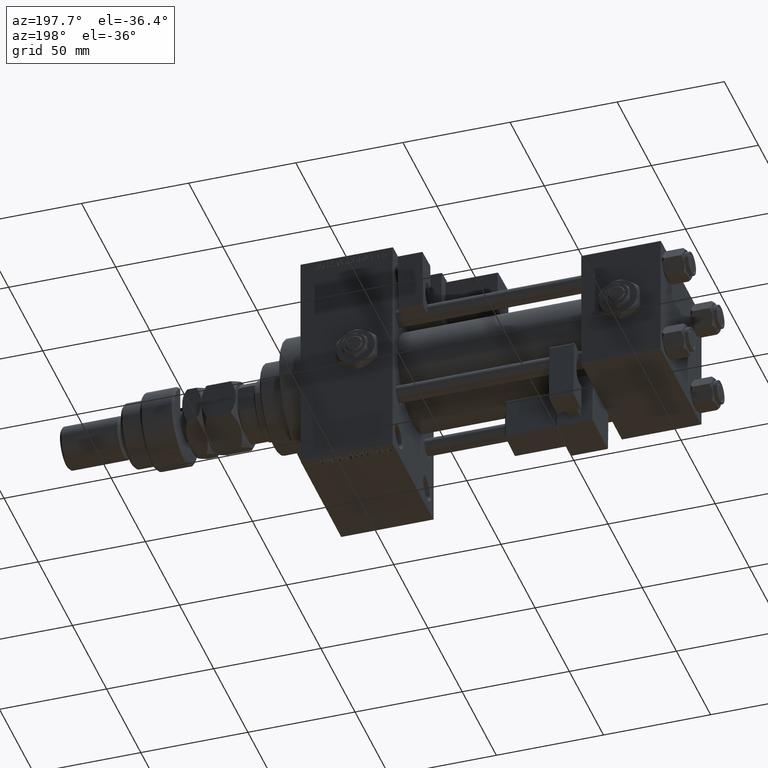
[diagram: clean part render]
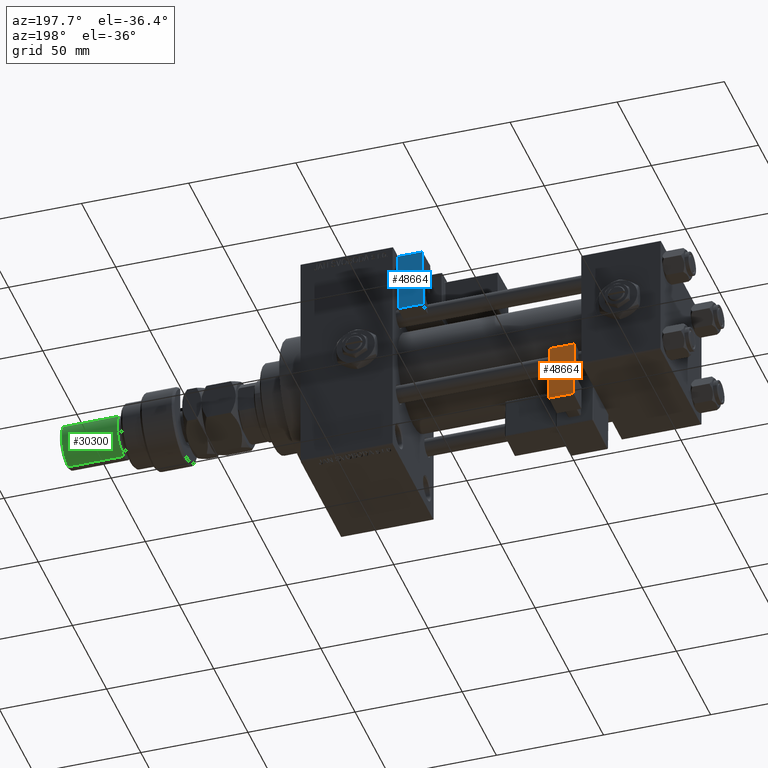
[diagram: same view with three faces highlighted in distinct colors, each labeled with its STEP entity id]
A machine part, auxiliary view with three faces highlighted in distinct colors.
Their STEP definitions:

[orange] entity #48664 — the highlighted planar face has unit normal (0, -0.9994, -0.0353).
#1641 = CARTESIAN_POINT ( 'NONE',  ( -5.750000000000000000, 5.750000000000000000, 0.000000000000000000 ) ) ;
#2496 = DIRECTION ( 'NONE',  ( -0.000000000000000000, -0.000000000000000000, -1.000000000000000000 ) ) ;
#2505 = PLANE ( 'NONE',  #38271 ) ;
#3134 = VECTOR ( 'NONE', #25343, 1000.000000000000000 ) ;
#4100 = CARTESIAN_POINT ( 'NONE',  ( -5.750000000000000000, 5.750000000000000000, 28.00000000000000000 ) ) ;
#8907 = CARTESIAN_POINT ( 'NONE',  ( 5.750000000000000000, 5.750000000000001776, 28.00000000000000000 ) ) ;
#11486 = LINE ( 'NONE', #24720, #28955 ) ;
#13844 = VERTEX_POINT ( 'NONE', #31279 ) ;
#15899 = DIRECTION ( 'NONE',  ( -1.000000000000000000, -1.508455196501571429E-16, -0.000000000000000000 ) ) ;
#18065 = EDGE_CURVE ( 'NONE', #13844, #30542, #54248, .T. ) ;
#18978 = ORIENTED_EDGE ( 'NONE', *, *, #21089, .T. ) ;
#19876 = CARTESIAN_POINT ( 'NONE',  ( 5.750000000000000000, 5.750000000000001776, 12.00000000000000000 ) ) ;
#21089 = EDGE_CURVE ( 'NONE', #39230, #30542, #11486, .T. ) ;
#21645 = VERTEX_POINT ( 'NONE', #8907 ) ;
#24720 = CARTESIAN_POINT ( 'NONE',  ( -5.750000000000000000, 5.750000000000000000, 0.000000000000000000 ) ) ;
#25343 = DIRECTION ( 'NONE',  ( 1.000000000000000000, 1.508455196501571183E-16, -0.000000000000000000 ) ) ;
#25462 = DIRECTION ( 'NONE',  ( -0.000000000000000000, -0.000000000000000000, -1.000000000000000000 ) ) ;
#26148 = VECTOR ( 'NONE', #25462, 1000.000000000000000 ) ;
#26320 = CARTESIAN_POINT ( 'NONE',  ( 5.750000000000000000, 5.750000000000001776, 0.000000000000000000 ) ) ;
#27903 = FACE_OUTER_BOUND ( 'NONE', #45703, .T. ) ;
#28696 = LINE ( 'NONE', #19876, #49431 ) ;
#28955 = VECTOR ( 'NONE', #15899, 1000.000000000000000 ) ;
#29597 = CARTESIAN_POINT ( 'NONE',  ( -5.750000000000000000, 5.750000000000000000, 12.00000000000000000 ) ) ;
#30542 = VERTEX_POINT ( 'NONE', #1641 ) ;
#31279 = CARTESIAN_POINT ( 'NONE',  ( -5.750000000000000000, 5.750000000000000000, 28.00000000000000000 ) ) ;
#32306 = DIRECTION ( 'NONE',  ( 1.000000000000000000, 1.508455196501571183E-16, 0.000000000000000000 ) ) ;
#33458 = ORIENTED_EDGE ( 'NONE', *, *, #51651, .T. ) ;
#37544 = EDGE_CURVE ( 'NONE', #21645, #39230, #28696, .T. ) ;
#38271 = AXIS2_PLACEMENT_3D ( 'NONE', #45018, #49177, #32306 ) ;
#39230 = VERTEX_POINT ( 'NONE', #26320 ) ;
#40856 = ORIENTED_EDGE ( 'NONE', *, *, #37544, .T. ) ;
#45018 = CARTESIAN_POINT ( 'NONE',  ( -5.750000000000000000, 5.750000000000000000, 12.00000000000000000 ) ) ;
#45703 = EDGE_LOOP ( 'NONE', ( #54076, #33458, #40856, #18978 ) ) ;
#46598 = LINE ( 'NONE', #4100, #3134 ) ;
#48664 = ADVANCED_FACE ( 'NONE', ( #27903 ), #2505, .F. ) ;
#49177 = DIRECTION ( 'NONE',  ( 1.508455196501571183E-16, -1.000000000000000000, 0.000000000000000000 ) ) ;
#49431 = VECTOR ( 'NONE', #2496, 1000.000000000000000 ) ;
#51651 = EDGE_CURVE ( 'NONE', #13844, #21645, #46598, .T. ) ;
#54076 = ORIENTED_EDGE ( 'NONE', *, *, #18065, .F. ) ;
#54248 = LINE ( 'NONE', #29597, #26148 ) ;

[blue] entity #48664 — the highlighted planar face has unit normal (-0, -0.9994, 0.0353).
#1641 = CARTESIAN_POINT ( 'NONE',  ( -5.750000000000000000, 5.750000000000000000, 0.000000000000000000 ) ) ;
#2496 = DIRECTION ( 'NONE',  ( -0.000000000000000000, -0.000000000000000000, -1.000000000000000000 ) ) ;
#2505 = PLANE ( 'NONE',  #38271 ) ;
#3134 = VECTOR ( 'NONE', #25343, 1000.000000000000000 ) ;
#4100 = CARTESIAN_POINT ( 'NONE',  ( -5.750000000000000000, 5.750000000000000000, 28.00000000000000000 ) ) ;
#8907 = CARTESIAN_POINT ( 'NONE',  ( 5.750000000000000000, 5.750000000000001776, 28.00000000000000000 ) ) ;
#11486 = LINE ( 'NONE', #24720, #28955 ) ;
#13844 = VERTEX_POINT ( 'NONE', #31279 ) ;
#15899 = DIRECTION ( 'NONE',  ( -1.000000000000000000, -1.508455196501571429E-16, -0.000000000000000000 ) ) ;
#18065 = EDGE_CURVE ( 'NONE', #13844, #30542, #54248, .T. ) ;
#18978 = ORIENTED_EDGE ( 'NONE', *, *, #21089, .T. ) ;
#19876 = CARTESIAN_POINT ( 'NONE',  ( 5.750000000000000000, 5.750000000000001776, 12.00000000000000000 ) ) ;
#21089 = EDGE_CURVE ( 'NONE', #39230, #30542, #11486, .T. ) ;
#21645 = VERTEX_POINT ( 'NONE', #8907 ) ;
#24720 = CARTESIAN_POINT ( 'NONE',  ( -5.750000000000000000, 5.750000000000000000, 0.000000000000000000 ) ) ;
#25343 = DIRECTION ( 'NONE',  ( 1.000000000000000000, 1.508455196501571183E-16, -0.000000000000000000 ) ) ;
#25462 = DIRECTION ( 'NONE',  ( -0.000000000000000000, -0.000000000000000000, -1.000000000000000000 ) ) ;
#26148 = VECTOR ( 'NONE', #25462, 1000.000000000000000 ) ;
#26320 = CARTESIAN_POINT ( 'NONE',  ( 5.750000000000000000, 5.750000000000001776, 0.000000000000000000 ) ) ;
#27903 = FACE_OUTER_BOUND ( 'NONE', #45703, .T. ) ;
#28696 = LINE ( 'NONE', #19876, #49431 ) ;
#28955 = VECTOR ( 'NONE', #15899, 1000.000000000000000 ) ;
#29597 = CARTESIAN_POINT ( 'NONE',  ( -5.750000000000000000, 5.750000000000000000, 12.00000000000000000 ) ) ;
#30542 = VERTEX_POINT ( 'NONE', #1641 ) ;
#31279 = CARTESIAN_POINT ( 'NONE',  ( -5.750000000000000000, 5.750000000000000000, 28.00000000000000000 ) ) ;
#32306 = DIRECTION ( 'NONE',  ( 1.000000000000000000, 1.508455196501571183E-16, 0.000000000000000000 ) ) ;
#33458 = ORIENTED_EDGE ( 'NONE', *, *, #51651, .T. ) ;
#37544 = EDGE_CURVE ( 'NONE', #21645, #39230, #28696, .T. ) ;
#38271 = AXIS2_PLACEMENT_3D ( 'NONE', #45018, #49177, #32306 ) ;
#39230 = VERTEX_POINT ( 'NONE', #26320 ) ;
#40856 = ORIENTED_EDGE ( 'NONE', *, *, #37544, .T. ) ;
#45018 = CARTESIAN_POINT ( 'NONE',  ( -5.750000000000000000, 5.750000000000000000, 12.00000000000000000 ) ) ;
#45703 = EDGE_LOOP ( 'NONE', ( #54076, #33458, #40856, #18978 ) ) ;
#46598 = LINE ( 'NONE', #4100, #3134 ) ;
#48664 = ADVANCED_FACE ( 'NONE', ( #27903 ), #2505, .F. ) ;
#49177 = DIRECTION ( 'NONE',  ( 1.508455196501571183E-16, -1.000000000000000000, 0.000000000000000000 ) ) ;
#49431 = VECTOR ( 'NONE', #2496, 1000.000000000000000 ) ;
#51651 = EDGE_CURVE ( 'NONE', #13844, #21645, #46598, .T. ) ;
#54076 = ORIENTED_EDGE ( 'NONE', *, *, #18065, .F. ) ;
#54248 = LINE ( 'NONE', #29597, #26148 ) ;

[green] entity #30300 — the highlighted cylindrical surface (edge-blend (fillet) strip) has radius 10 mm, axis along (-1, -0, 0).
#2754 = CARTESIAN_POINT ( 'NONE',  ( 0.000000000000000000, 0.000000000000000000, 29.00000000000000711 ) ) ;
#4431 = VECTOR ( 'NONE', #18362, 1000.000000000000000 ) ;
#6123 = EDGE_CURVE ( 'NONE', #23846, #40198, #6221, .T. ) ;
#6221 = CIRCLE ( 'NONE', #51944, 10.00000000000000000 ) ;
#8537 = EDGE_CURVE ( 'NONE', #46385, #23846, #26908, .T. ) ;
#12332 = VERTEX_POINT ( 'NONE', #44120 ) ;
#12782 = CARTESIAN_POINT ( 'NONE',  ( -10.00000000000000000, 0.000000000000000000, 56.00000000000000711 ) ) ;
#13222 = ORIENTED_EDGE ( 'NONE', *, *, #52358, .F. ) ;
#14223 = CARTESIAN_POINT ( 'NONE',  ( 10.00000000000000000, 1.224646799147353256E-15, 56.00000000000000711 ) ) ;
#18362 = DIRECTION ( 'NONE',  ( -0.000000000000000000, -0.000000000000000000, -1.000000000000000000 ) ) ;
#21805 = FACE_OUTER_BOUND ( 'NONE', #44333, .T. ) ;
#23119 = AXIS2_PLACEMENT_3D ( 'NONE', #24401, #41256, #37116 ) ;
#23846 = VERTEX_POINT ( 'NONE', #51318 ) ;
#24328 = VECTOR ( 'NONE', #29359, 1000.000000000000000 ) ;
#24401 = CARTESIAN_POINT ( 'NONE',  ( 0.000000000000000000, 0.000000000000000000, 54.99999999999998579 ) ) ;
#26908 = LINE ( 'NONE', #14223, #4431 ) ;
#29359 = DIRECTION ( 'NONE',  ( -0.000000000000000000, -0.000000000000000000, -1.000000000000000000 ) ) ;
#30300 = ADVANCED_FACE ( 'NONE', ( #21805 ), #30896, .T. ) ;
#30331 = CARTESIAN_POINT ( 'NONE',  ( 10.00000000000000000, 1.224646799147353256E-15, 54.99999999999998579 ) ) ;
#30896 = CYLINDRICAL_SURFACE ( 'NONE', #45944, 10.00000000000000000 ) ;
#35051 = DIRECTION ( 'NONE',  ( -1.000000000000000000, 0.000000000000000000, 0.000000000000000000 ) ) ;
#36758 = CARTESIAN_POINT ( 'NONE',  ( -10.00000000000000000, 0.000000000000000000, 29.00000000000000711 ) ) ;
#37116 = DIRECTION ( 'NONE',  ( 1.000000000000000000, 0.000000000000000000, 0.000000000000000000 ) ) ;
#37408 = ORIENTED_EDGE ( 'NONE', *, *, #41675, .T. ) ;
#38116 = CARTESIAN_POINT ( 'NONE',  ( 0.000000000000000000, 0.000000000000000000, 56.00000000000000711 ) ) ;
#39002 = DIRECTION ( 'NONE',  ( -0.000000000000000000, -0.000000000000000000, 1.000000000000000000 ) ) ;
#40198 = VERTEX_POINT ( 'NONE', #36758 ) ;
#41256 = DIRECTION ( 'NONE',  ( 0.000000000000000000, 0.000000000000000000, -1.000000000000000000 ) ) ;
#41675 = EDGE_CURVE ( 'NONE', #12332, #46385, #46911, .T. ) ;
#43334 = DIRECTION ( 'NONE',  ( -0.000000000000000000, -0.000000000000000000, -1.000000000000000000 ) ) ;
#44120 = CARTESIAN_POINT ( 'NONE',  ( -10.00000000000000000, 0.000000000000000000, 54.99999999999998579 ) ) ;
#44333 = EDGE_LOOP ( 'NONE', ( #37408, #47003, #49892, #13222 ) ) ;
#45944 = AXIS2_PLACEMENT_3D ( 'NONE', #38116, #43334, #35051 ) ;
#46385 = VERTEX_POINT ( 'NONE', #30331 ) ;
#46911 = CIRCLE ( 'NONE', #23119, 10.00000000000000000 ) ;
#47003 = ORIENTED_EDGE ( 'NONE', *, *, #8537, .T. ) ;
#49151 = DIRECTION ( 'NONE',  ( 1.000000000000000000, 0.000000000000000000, 0.000000000000000000 ) ) ;
#49892 = ORIENTED_EDGE ( 'NONE', *, *, #6123, .T. ) ;
#50094 = LINE ( 'NONE', #12782, #24328 ) ;
#51318 = CARTESIAN_POINT ( 'NONE',  ( 10.00000000000000000, 1.224646799147353256E-15, 29.00000000000000711 ) ) ;
#51944 = AXIS2_PLACEMENT_3D ( 'NONE', #2754, #39002, #49151 ) ;
#52358 = EDGE_CURVE ( 'NONE', #12332, #40198, #50094, .T. ) ;